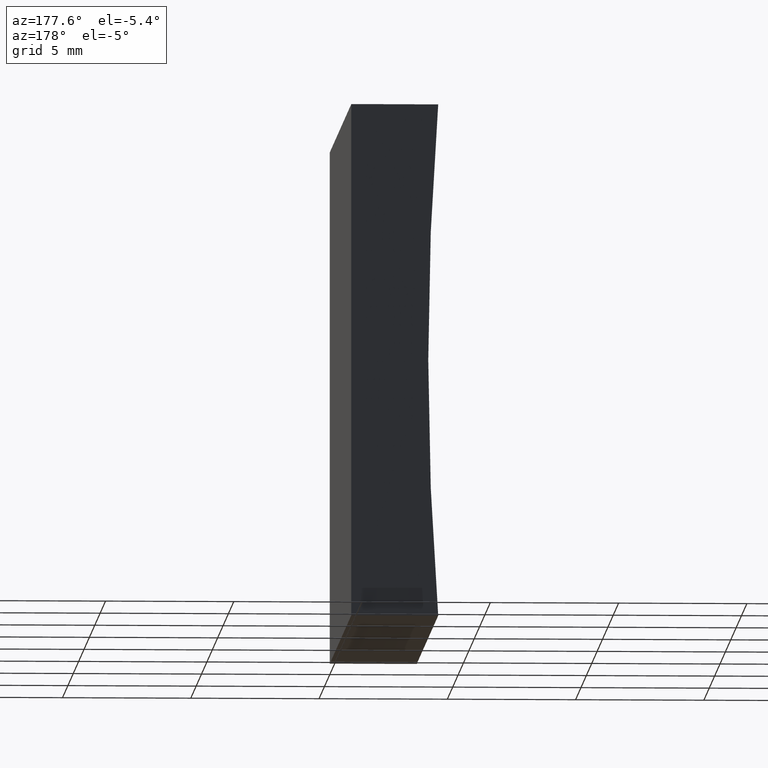
[diagram: clean part render]
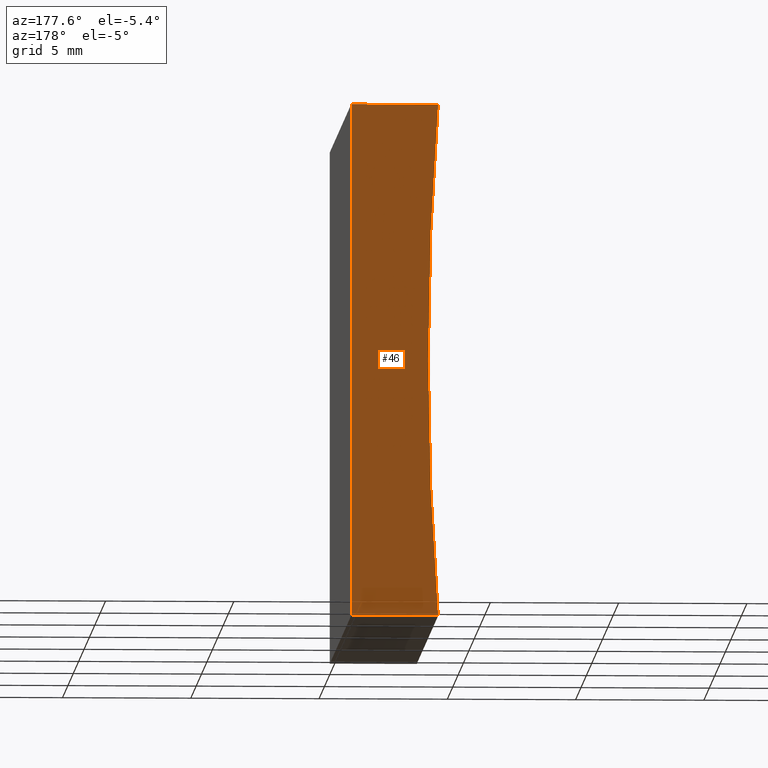
[diagram: same view with one face highlighted and labeled with its STEP entity id]
A machine part, auxiliary view. The second image highlights one B-rep face of the part: STEP entity #46.
In plain terms, the highlighted planar face has unit normal (0, 1, 0).
Its self-contained STEP definition (entity closure, byte-faithful):
#8 = PLANE ( 'NONE',  #101 ) ;
#9 = AXIS2_PLACEMENT_3D ( 'NONE', #24, #109, #15 ) ;
#15 = DIRECTION ( 'NONE',  ( 0.0000000000000000000, 0.0000000000000000000, 1.000000000000000000 ) ) ;
#20 = CIRCLE ( 'NONE', #9, 129.2500000000000000 ) ;
#24 = CARTESIAN_POINT ( 'NONE',  ( -132.2500000000000000, 20.00000000000000000, 10.00000000000001600 ) ) ;
#33 = VECTOR ( 'NONE', #151, 1000.000000000000000 ) ;
#43 = VERTEX_POINT ( 'NONE', #183 ) ;
#46 = ADVANCED_FACE ( 'NONE', ( #123 ), #8, .T. ) ;
#50 = DIRECTION ( 'NONE',  ( -6.123233995736766000E-017, -0.0000000000000000000, -1.000000000000000000 ) ) ;
#56 = LINE ( 'NONE', #140, #87 ) ;
#60 = CARTESIAN_POINT ( 'NONE',  ( -3.387427854322250500, 20.00000000000000000, 20.00000000000000000 ) ) ;
#63 = ORIENTED_EDGE ( 'NONE', *, *, #72, .T. ) ;
#68 = EDGE_CURVE ( 'NONE', #124, #117, #130, .T. ) ;
#72 = EDGE_CURVE ( 'NONE', #167, #124, #56, .T. ) ;
#75 = VECTOR ( 'NONE', #50, 1000.000000000000000 ) ;
#77 = CARTESIAN_POINT ( 'NONE',  ( 0.0000000000000000000, 20.00000000000000000, 0.0000000000000000000 ) ) ;
#83 = EDGE_LOOP ( 'NONE', ( #172, #196, #63, #95 ) ) ;
#87 = VECTOR ( 'NONE', #188, 1000.000000000000000 ) ;
#90 = EDGE_CURVE ( 'NONE', #43, #167, #20, .T. ) ;
#93 = CARTESIAN_POINT ( 'NONE',  ( 0.0000000000000000000, 20.00000000000000000, 0.0000000000000000000 ) ) ;
#95 = ORIENTED_EDGE ( 'NONE', *, *, #68, .T. ) ;
#101 = AXIS2_PLACEMENT_3D ( 'NONE', #181, #170, #156 ) ;
#109 = DIRECTION ( 'NONE',  ( -0.0000000000000000000, -1.000000000000000000, -0.0000000000000000000 ) ) ;
#117 = VERTEX_POINT ( 'NONE', #171 ) ;
#123 = FACE_OUTER_BOUND ( 'NONE', #83, .T. ) ;
#124 = VERTEX_POINT ( 'NONE', #149 ) ;
#130 = LINE ( 'NONE', #77, #75 ) ;
#140 = CARTESIAN_POINT ( 'NONE',  ( 1.224646799147353300E-015, 20.00000000000000000, 20.00000000000000000 ) ) ;
#144 = EDGE_CURVE ( 'NONE', #117, #43, #150, .T. ) ;
#149 = CARTESIAN_POINT ( 'NONE',  ( 1.224646799147353300E-015, 20.00000000000000000, 20.00000000000000000 ) ) ;
#150 = LINE ( 'NONE', #93, #33 ) ;
#151 = DIRECTION ( 'NONE',  ( -1.000000000000000000, 0.0000000000000000000, 0.0000000000000000000 ) ) ;
#156 = DIRECTION ( 'NONE',  ( 0.0000000000000000000, -0.0000000000000000000, 1.000000000000000000 ) ) ;
#167 = VERTEX_POINT ( 'NONE', #60 ) ;
#170 = DIRECTION ( 'NONE',  ( 0.0000000000000000000, 1.000000000000000000, 0.0000000000000000000 ) ) ;
#172 = ORIENTED_EDGE ( 'NONE', *, *, #144, .T. ) ;
#171 = CARTESIAN_POINT ( 'NONE',  ( 0.0000000000000000000, 20.00000000000000000, 0.0000000000000000000 ) ) ;
#181 = CARTESIAN_POINT ( 'NONE',  ( -132.2500000000000000, 20.00000000000000000, 10.00000000000001600 ) ) ;
#183 = CARTESIAN_POINT ( 'NONE',  ( -3.387427854322250000, 20.00000000000000000, 1.214306433183765000E-014 ) ) ;
#188 = DIRECTION ( 'NONE',  ( 1.000000000000000000, -0.0000000000000000000, -0.0000000000000000000 ) ) ;
#196 = ORIENTED_EDGE ( 'NONE', *, *, #90, .T. ) ;